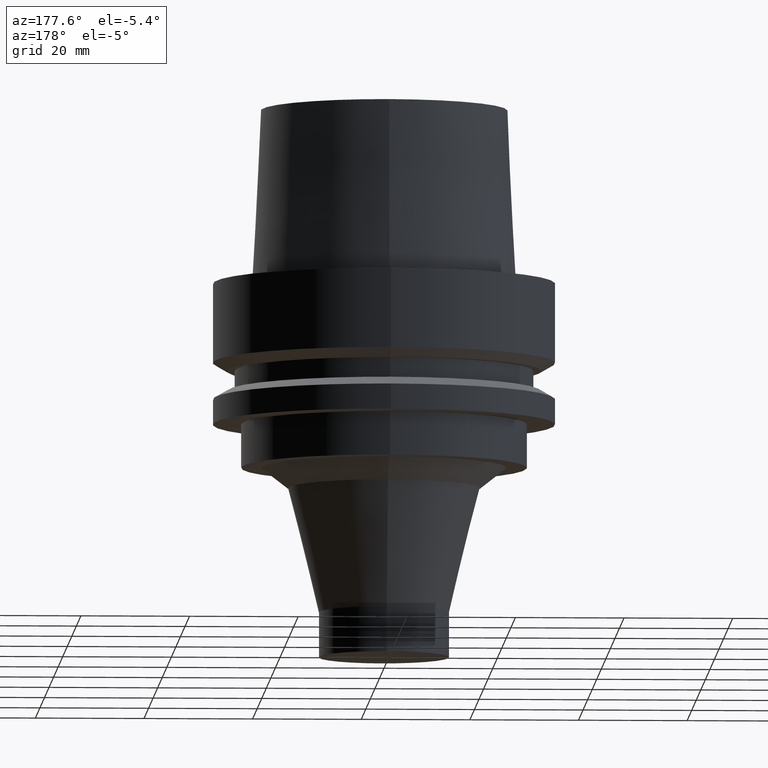
[diagram: clean part render]
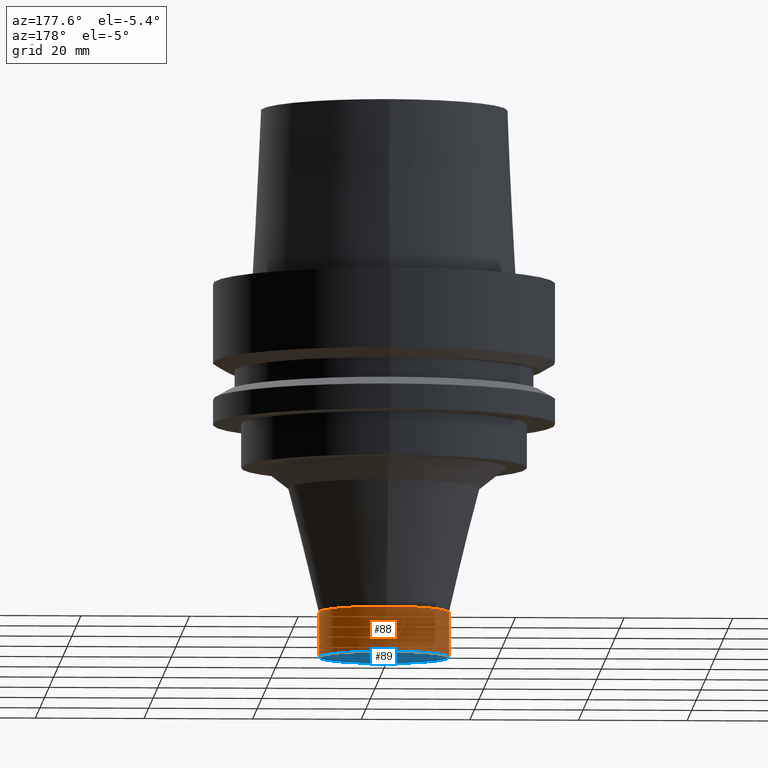
[diagram: same view with the hole feature highlighted: cylindrical wall and planar end face, labeled with their STEP entity ids]
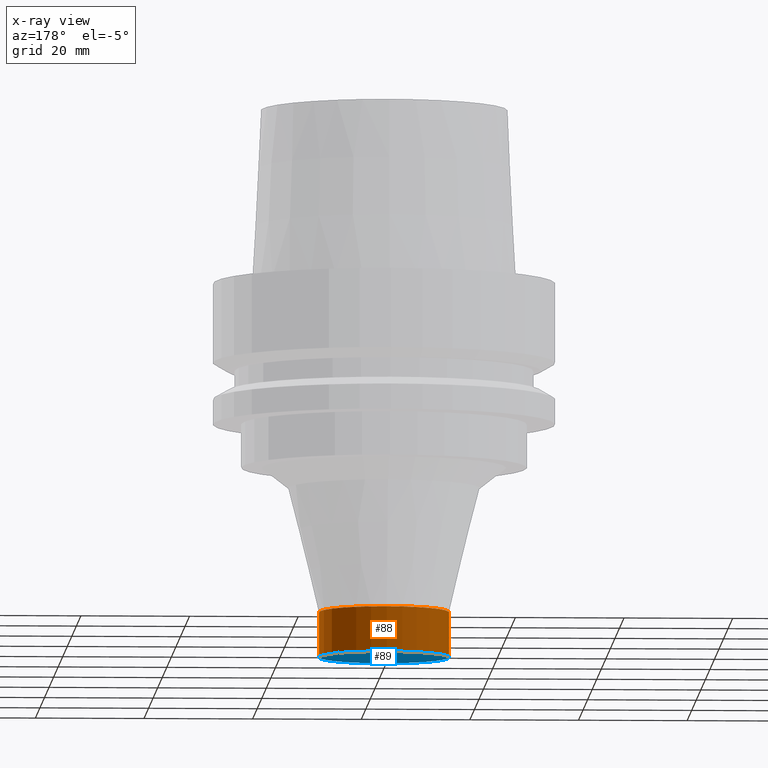
[diagram: x-ray of the same camera — body ghosted, the hole faces saturated]
A machine part, auxiliary view. The highlighted faces form one hole feature of diameter 24 mm: the cylindrical wall (entity #88, orange) and its adjacent planar end face (entity #89, blue) — they share a circular edge in the B-rep.
The next image is the same camera in x-ray (body ghosted, the hole faces saturated) — the bore reads through the body.
Wall:
#88=ADVANCED_FACE('',(#132,#133),#134,.T.);
#132=FACE_BOUND('',#181,.T.);
#133=FACE_BOUND('',#182,.T.);
#134=CYLINDRICAL_SURFACE('',#183,12.0);
#181=EDGE_LOOP('',(#256));
#182=EDGE_LOOP('',(#257));
#183=AXIS2_PLACEMENT_3D('',#258,#259,#260);
#256=ORIENTED_EDGE('',*,*,#288,.F.);
#257=ORIENTED_EDGE('',*,*,#287,.T.);
#258=CARTESIAN_POINT('',(3.97091724623529E-015,7.94183449247058E-015,-64.85));
#259=DIRECTION('',(-6.12323399573677E-017,-1.22464679914735E-016,1.0));
#260=DIRECTION('',(-1.23259516440783E-032,1.0,1.22464679914735E-016));
#287=EDGE_CURVE('',#316,#316,#317,.T.);
#288=EDGE_CURVE('',#318,#318,#319,.T.);
#316=VERTEX_POINT('',#348);
#317=CIRCLE('',#349,12.0);
#318=VERTEX_POINT('',#350);
#319=CIRCLE('',#351,12.0);
#348=CARTESIAN_POINT('',(3.71680303541222E-015,12.0,-60.7));
#349=AXIS2_PLACEMENT_3D('',#393,#394,#395);
#350=CARTESIAN_POINT('',(4.22503145705837E-015,12.0,-69.0));
#351=AXIS2_PLACEMENT_3D('',#396,#397,#398);
#393=CARTESIAN_POINT('',(3.71680303541222E-015,7.43360607082443E-015,-60.7));
#394=DIRECTION('',(6.12323399573677E-017,1.22464679914735E-016,-1.0));
#395=DIRECTION('',(-1.23259516440783E-032,1.0,1.22464679914735E-016));
#396=CARTESIAN_POINT('',(4.22503145705837E-015,8.45006291411673E-015,-69.0));
#397=DIRECTION('',(6.12323399573677E-017,1.22464679914735E-016,-1.0));
#398=DIRECTION('',(-1.23259516440783E-032,1.0,1.22464679914735E-016));
End face:
#89=ADVANCED_FACE('',(#135),#136,.T.);
#135=FACE_OUTER_BOUND('',#184,.T.);
#136=PLANE('',#185);
#184=EDGE_LOOP('',(#261));
#185=AXIS2_PLACEMENT_3D('',#262,#263,#264);
#261=ORIENTED_EDGE('',*,*,#288,.T.);
#262=CARTESIAN_POINT('',(4.22503145705837E-015,6.00000000000001,-69.0));
#263=DIRECTION('',(6.12323399573677E-017,1.22464679914735E-016,-1.0));
#264=DIRECTION('',(-1.23259516440783E-032,1.0,1.22464679914735E-016));
#288=EDGE_CURVE('',#318,#318,#319,.T.);
#318=VERTEX_POINT('',#350);
#319=CIRCLE('',#351,12.0);
#350=CARTESIAN_POINT('',(4.22503145705837E-015,12.0,-69.0));
#351=AXIS2_PLACEMENT_3D('',#396,#397,#398);
#396=CARTESIAN_POINT('',(4.22503145705837E-015,8.45006291411673E-015,-69.0));
#397=DIRECTION('',(6.12323399573677E-017,1.22464679914735E-016,-1.0));
#398=DIRECTION('',(-1.23259516440783E-032,1.0,1.22464679914735E-016));